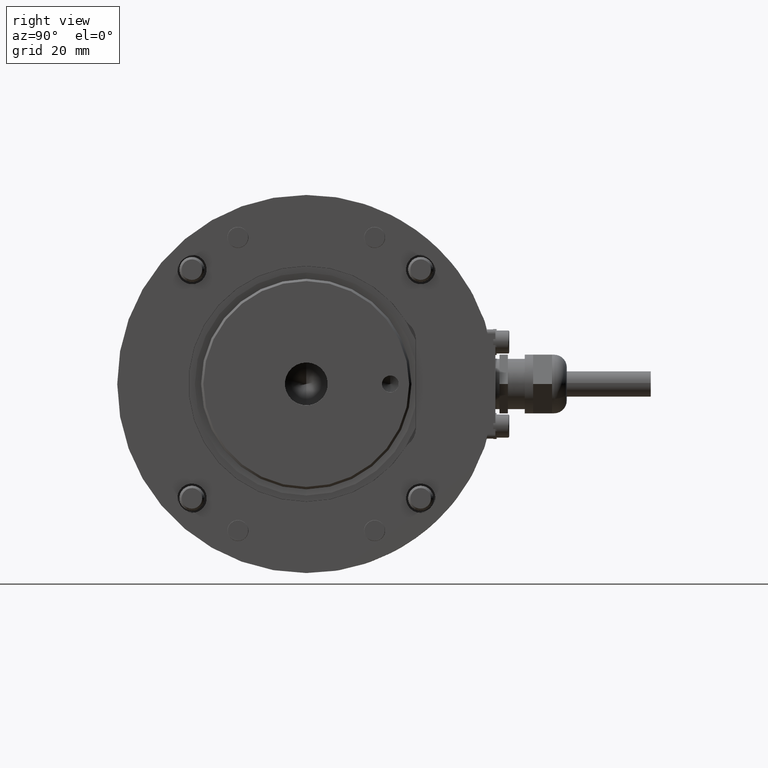
[diagram: clean part render]
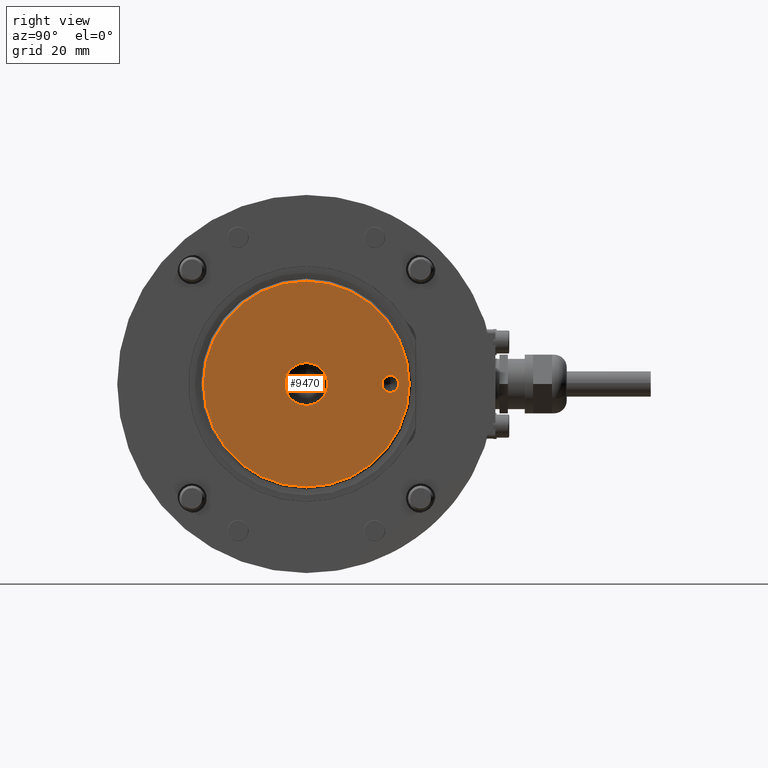
[diagram: same view with one face highlighted and labeled with its STEP entity id]
A machine part, right view. The second image highlights one B-rep face of the part: STEP entity #9470.
In plain terms, the highlighted planar face has unit normal (-1, 0, 0).
Its self-contained STEP definition (entity closure, byte-faithful):
#298 = AXIS2_PLACEMENT_3D ( 'NONE', #5308, #5356, #11364 ) ;
#350 = DIRECTION ( 'NONE',  ( 1.000000000000000000, -0.000000000000000000, -0.000000000000000000 ) ) ;
#431 = CARTESIAN_POINT ( 'NONE',  ( 70.00000000000000000, 19.99999999999999289, 0.000000000000000000 ) ) ;
#449 = ORIENTED_EDGE ( 'NONE', *, *, #11276, .F. ) ;
#1075 = CARTESIAN_POINT ( 'NONE',  ( 70.00000000000000000, 0.000000000000000000, 0.000000000000000000 ) ) ;
#1556 = VERTEX_POINT ( 'NONE', #4754 ) ;
#2238 = DIRECTION ( 'NONE',  ( 1.000000000000000000, 0.000000000000000000, 0.000000000000000000 ) ) ;
#2388 = CARTESIAN_POINT ( 'NONE',  ( 70.00000000000000000, 19.99999999999999289, 0.000000000000000000 ) ) ;
#2469 = FACE_OUTER_BOUND ( 'NONE', #3348, .T. ) ;
#2617 = CARTESIAN_POINT ( 'NONE',  ( 70.00000000000000000, 0.000000000000000000, 0.000000000000000000 ) ) ;
#3319 = PLANE ( 'NONE',  #298 ) ;
#3348 = EDGE_LOOP ( 'NONE', ( #9889, #10430 ) ) ;
#3379 = CIRCLE ( 'NONE', #4713, 5.099999999999998757 ) ;
#3559 = AXIS2_PLACEMENT_3D ( 'NONE', #2388, #350, #10469 ) ;
#3641 = EDGE_CURVE ( 'NONE', #10035, #10665, #7918, .T. ) ;
#3798 = EDGE_LOOP ( 'NONE', ( #10327, #449 ) ) ;
#3889 = AXIS2_PLACEMENT_3D ( 'NONE', #2617, #9668, #4661 ) ;
#4227 = EDGE_LOOP ( 'NONE', ( #8632, #11902 ) ) ;
#4661 = DIRECTION ( 'NONE',  ( 0.000000000000000000, 0.000000000000000000, -1.000000000000000000 ) ) ;
#4713 = AXIS2_PLACEMENT_3D ( 'NONE', #10873, #6697, #12712 ) ;
#4754 = CARTESIAN_POINT ( 'NONE',  ( 70.00000000000000000, 6.245698675651499853E-16, 5.099999999999998757 ) ) ;
#5203 = CARTESIAN_POINT ( 'NONE',  ( 70.00000000000000000, 0.000000000000000000, 24.50000000000001421 ) ) ;
#5308 = CARTESIAN_POINT ( 'NONE',  ( 70.00000000000000000, 0.000000000000000000, 0.000000000000000000 ) ) ;
#5356 = DIRECTION ( 'NONE',  ( -1.000000000000000000, 0.000000000000000000, -0.000000000000000000 ) ) ;
#5761 = FACE_BOUND ( 'NONE', #4227, .T. ) ;
#6189 = CIRCLE ( 'NONE', #10855, 1.999999999999998224 ) ;
#6486 = VERTEX_POINT ( 'NONE', #9535 ) ;
#6542 = DIRECTION ( 'NONE',  ( 0.000000000000000000, 0.000000000000000000, -1.000000000000000000 ) ) ;
#6578 = CIRCLE ( 'NONE', #12681, 24.50000000000001421 ) ;
#6697 = DIRECTION ( 'NONE',  ( 1.000000000000000000, -0.000000000000000000, -0.000000000000000000 ) ) ;
#6835 = AXIS2_PLACEMENT_3D ( 'NONE', #1075, #7020, #8160 ) ;
#7020 = DIRECTION ( 'NONE',  ( 1.000000000000000000, 0.000000000000000000, 0.000000000000000000 ) ) ;
#7503 = EDGE_CURVE ( 'NONE', #10665, #10035, #6578, .T. ) ;
#7592 = CIRCLE ( 'NONE', #3889, 5.099999999999998757 ) ;
#7918 = CIRCLE ( 'NONE', #6835, 24.50000000000001421 ) ;
#8160 = DIRECTION ( 'NONE',  ( 0.000000000000000000, 0.000000000000000000, 1.000000000000000000 ) ) ;
#8380 = DIRECTION ( 'NONE',  ( 1.000000000000000000, -0.000000000000000000, -0.000000000000000000 ) ) ;
#8632 = ORIENTED_EDGE ( 'NONE', *, *, #10362, .F. ) ;
#8994 = CIRCLE ( 'NONE', #3559, 1.999999999999998224 ) ;
#9229 = DIRECTION ( 'NONE',  ( 0.000000000000000000, 0.000000000000000000, 1.000000000000000000 ) ) ;
#9350 = CARTESIAN_POINT ( 'NONE',  ( 70.00000000000000000, 19.99999999999999289, 1.999999999999998224 ) ) ;
#9470 = ADVANCED_FACE ( 'NONE', ( #2469, #12164, #5761 ), #3319, .F. ) ;
#9535 = CARTESIAN_POINT ( 'NONE',  ( 70.00000000000000000, 0.000000000000000000, -5.099999999999998757 ) ) ;
#9668 = DIRECTION ( 'NONE',  ( 1.000000000000000000, -0.000000000000000000, -0.000000000000000000 ) ) ;
#9889 = ORIENTED_EDGE ( 'NONE', *, *, #7503, .T. ) ;
#10035 = VERTEX_POINT ( 'NONE', #10441 ) ;
#10278 = CARTESIAN_POINT ( 'NONE',  ( 70.00000000000000000, 0.000000000000000000, 0.000000000000000000 ) ) ;
#10327 = ORIENTED_EDGE ( 'NONE', *, *, #10839, .F. ) ;
#10362 = EDGE_CURVE ( 'NONE', #6486, #1556, #3379, .T. ) ;
#10430 = ORIENTED_EDGE ( 'NONE', *, *, #3641, .T. ) ;
#10441 = CARTESIAN_POINT ( 'NONE',  ( 70.00000000000000000, 3.031000827889700044E-15, -24.50000000000001421 ) ) ;
#10469 = DIRECTION ( 'NONE',  ( 0.000000000000000000, 0.000000000000000000, -1.000000000000000000 ) ) ;
#10665 = VERTEX_POINT ( 'NONE', #5203 ) ;
#10839 = EDGE_CURVE ( 'NONE', #12505, #11924, #8994, .T. ) ;
#10855 = AXIS2_PLACEMENT_3D ( 'NONE', #431, #8380, #6542 ) ;
#10873 = CARTESIAN_POINT ( 'NONE',  ( 70.00000000000000000, 0.000000000000000000, 0.000000000000000000 ) ) ;
#11276 = EDGE_CURVE ( 'NONE', #11924, #12505, #6189, .T. ) ;
#11364 = DIRECTION ( 'NONE',  ( -0.000000000000000000, 0.000000000000000000, 1.000000000000000000 ) ) ;
#11902 = ORIENTED_EDGE ( 'NONE', *, *, #12112, .F. ) ;
#11924 = VERTEX_POINT ( 'NONE', #9350 ) ;
#12103 = CARTESIAN_POINT ( 'NONE',  ( 70.00000000000000000, 19.99999999999999289, -1.999999999999998224 ) ) ;
#12112 = EDGE_CURVE ( 'NONE', #1556, #6486, #7592, .T. ) ;
#12164 = FACE_BOUND ( 'NONE', #3798, .T. ) ;
#12505 = VERTEX_POINT ( 'NONE', #12103 ) ;
#12681 = AXIS2_PLACEMENT_3D ( 'NONE', #10278, #2238, #9229 ) ;
#12712 = DIRECTION ( 'NONE',  ( 0.000000000000000000, 0.000000000000000000, -1.000000000000000000 ) ) ;